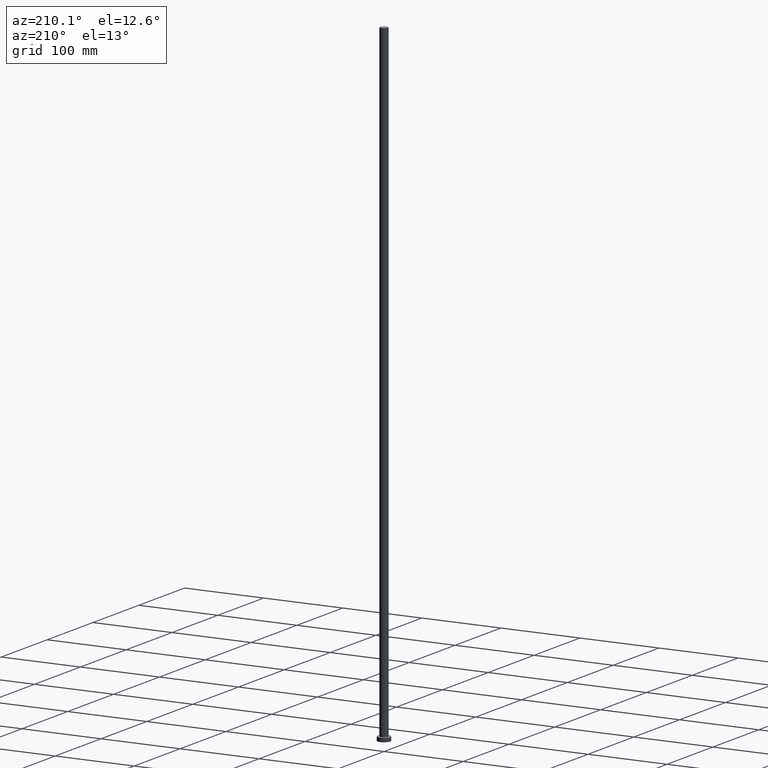
[diagram: clean part render]
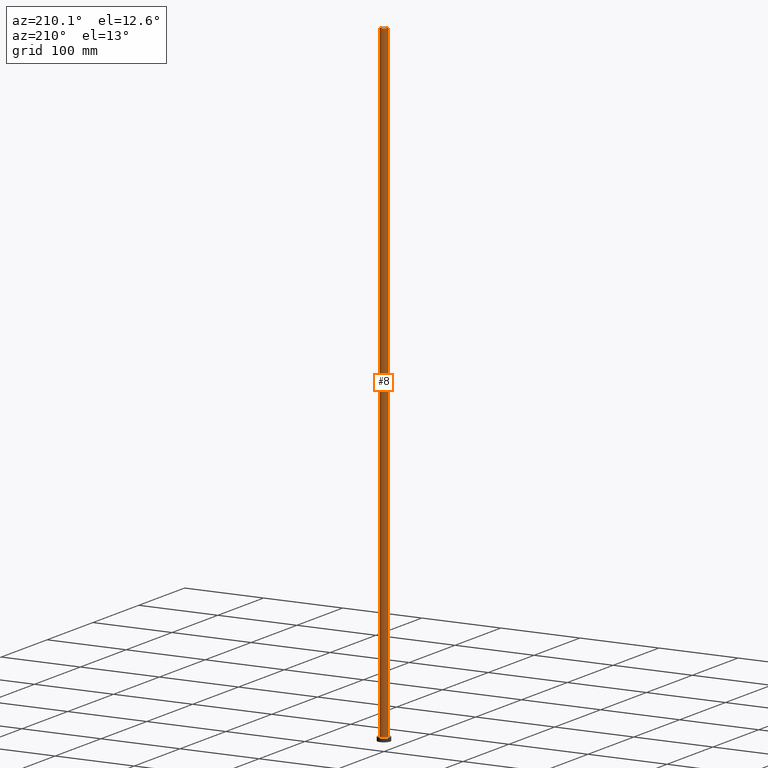
[diagram: same view with one face highlighted and labeled with its STEP entity id]
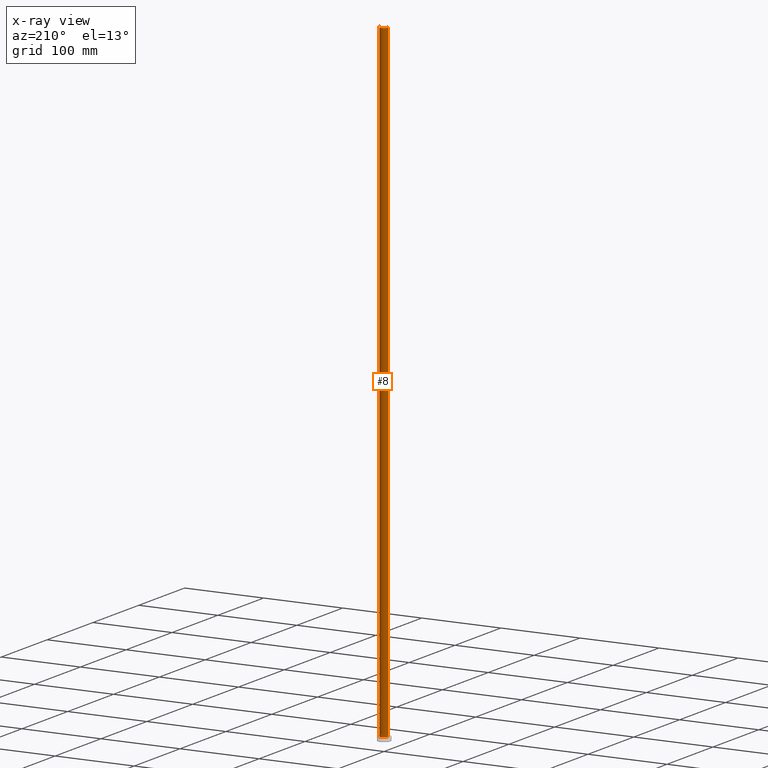
[diagram: x-ray of the same camera — body ghosted, the highlighted face saturated]
A machine part, auxiliary view. The second image highlights one B-rep face of the part: STEP entity #8.
The next image is the same camera in x-ray: the body ghosted, the highlighted face saturated — about 0% of this face is hidden behind the body in this view.
In plain terms, the highlighted cylindrical surface (edge-blend (fillet) strip) has radius 5 mm, axis along (-0, -0, -1).
Its self-contained STEP definition (entity closure, byte-faithful):
#8 = ADVANCED_FACE ( 'NONE', ( #180 ), #86, .T. ) ;
#9 = VERTEX_POINT ( 'NONE', #63 ) ;
#23 = CARTESIAN_POINT ( 'NONE',  ( -5.000000000000000888, 0.000000000000000000, 800.0000000000000000 ) ) ;
#26 = AXIS2_PLACEMENT_3D ( 'NONE', #37, #73, #150 ) ;
#27 = EDGE_LOOP ( 'NONE', ( #65, #226, #248, #168 ) ) ;
#28 = VERTEX_POINT ( 'NONE', #188 ) ;
#35 = DIRECTION ( 'NONE',  ( -0.000000000000000000, -0.000000000000000000, -1.000000000000000000 ) ) ;
#37 = CARTESIAN_POINT ( 'NONE',  ( 0.000000000000000000, 0.000000000000000000, 5.000000000000000000 ) ) ;
#44 = LINE ( 'NONE', #61, #243 ) ;
#50 = EDGE_CURVE ( 'NONE', #28, #9, #44, .T. ) ;
#61 = CARTESIAN_POINT ( 'NONE',  ( 5.000000000000000888, 6.123233995736767268E-16, 800.0000000000000000 ) ) ;
#63 = CARTESIAN_POINT ( 'NONE',  ( 5.000000000000000888, 6.123233995736767268E-16, 5.000000000000000000 ) ) ;
#65 = ORIENTED_EDGE ( 'NONE', *, *, #146, .F. ) ;
#67 = VECTOR ( 'NONE', #176, 1000.000000000000000 ) ;
#73 = DIRECTION ( 'NONE',  ( 0.000000000000000000, 0.000000000000000000, 1.000000000000000000 ) ) ;
#80 = VERTEX_POINT ( 'NONE', #105 ) ;
#86 = CYLINDRICAL_SURFACE ( 'NONE', #225, 5.000000000000000888 ) ;
#103 = AXIS2_PLACEMENT_3D ( 'NONE', #133, #170, #135 ) ;
#105 = CARTESIAN_POINT ( 'NONE',  ( -5.000000000000000888, 0.000000000000000000, 800.0000000000000000 ) ) ;
#133 = CARTESIAN_POINT ( 'NONE',  ( 0.000000000000000000, 0.000000000000000000, 800.0000000000000000 ) ) ;
#135 = DIRECTION ( 'NONE',  ( 1.000000000000000000, 0.000000000000000000, 0.000000000000000000 ) ) ;
#146 = EDGE_CURVE ( 'NONE', #28, #80, #220, .T. ) ;
#150 = DIRECTION ( 'NONE',  ( 1.000000000000000000, 0.000000000000000000, 0.000000000000000000 ) ) ;
#168 = ORIENTED_EDGE ( 'NONE', *, *, #201, .F. ) ;
#170 = DIRECTION ( 'NONE',  ( 0.000000000000000000, 0.000000000000000000, 1.000000000000000000 ) ) ;
#174 = CIRCLE ( 'NONE', #26, 5.000000000000000888 ) ;
#176 = DIRECTION ( 'NONE',  ( -0.000000000000000000, -0.000000000000000000, -1.000000000000000000 ) ) ;
#180 = FACE_OUTER_BOUND ( 'NONE', #27, .T. ) ;
#187 = VERTEX_POINT ( 'NONE', #230 ) ;
#188 = CARTESIAN_POINT ( 'NONE',  ( 5.000000000000000888, 6.123233995736767268E-16, 800.0000000000000000 ) ) ;
#201 = EDGE_CURVE ( 'NONE', #80, #187, #212, .T. ) ;
#212 = LINE ( 'NONE', #23, #67 ) ;
#217 = DIRECTION ( 'NONE',  ( -1.000000000000000000, 0.000000000000000000, 0.000000000000000000 ) ) ;
#220 = CIRCLE ( 'NONE', #103, 5.000000000000000888 ) ;
#225 = AXIS2_PLACEMENT_3D ( 'NONE', #242, #35, #217 ) ;
#226 = ORIENTED_EDGE ( 'NONE', *, *, #50, .T. ) ;
#230 = CARTESIAN_POINT ( 'NONE',  ( -5.000000000000000888, 0.000000000000000000, 5.000000000000000000 ) ) ;
#236 = EDGE_CURVE ( 'NONE', #9, #187, #174, .T. ) ;
#242 = CARTESIAN_POINT ( 'NONE',  ( 0.000000000000000000, 0.000000000000000000, 800.0000000000000000 ) ) ;
#243 = VECTOR ( 'NONE', #244, 1000.000000000000000 ) ;
#244 = DIRECTION ( 'NONE',  ( -0.000000000000000000, -0.000000000000000000, -1.000000000000000000 ) ) ;
#248 = ORIENTED_EDGE ( 'NONE', *, *, #236, .T. ) ;